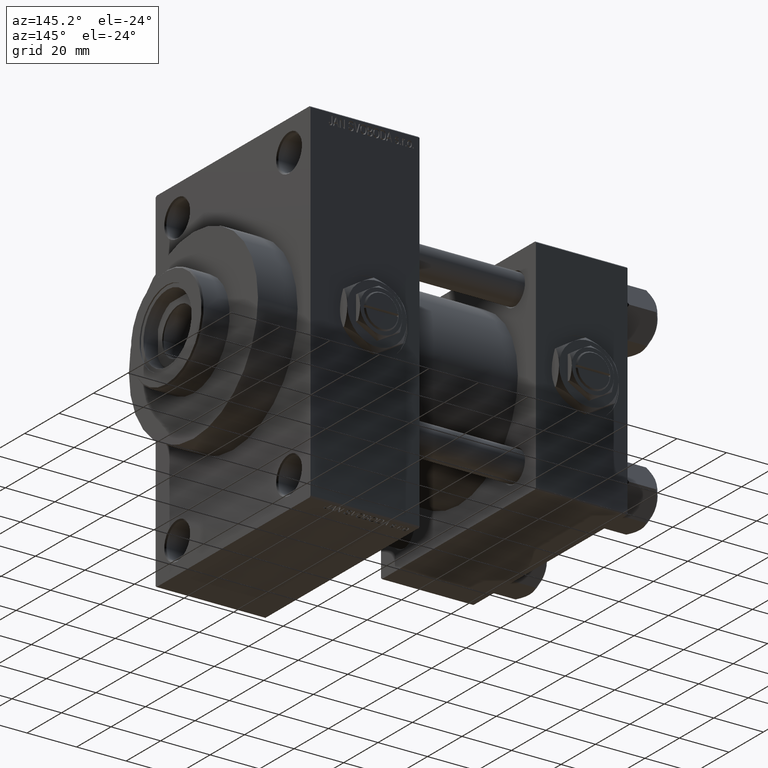
[diagram: clean part render]
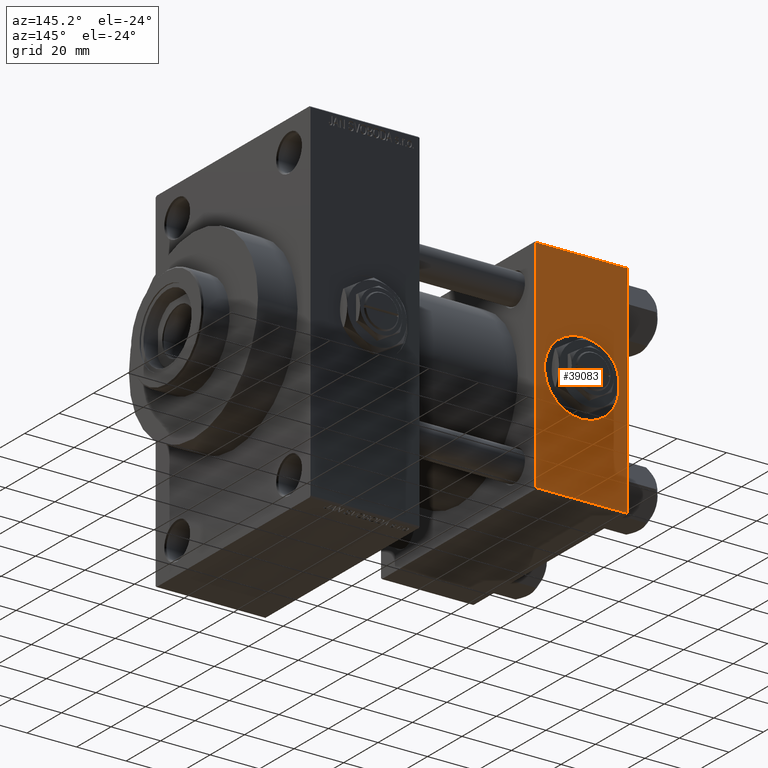
[diagram: same view with one face highlighted and labeled with its STEP entity id]
A machine part, auxiliary view. The second image highlights one B-rep face of the part: STEP entity #39083.
In plain terms, the highlighted planar face has unit normal (0, 1, 0).
Its self-contained STEP definition (entity closure, byte-faithful):
#260 = EDGE_CURVE ( 'NONE', #32337, #31230, #24491, .T. ) ;
#1829 = DIRECTION ( 'NONE',  ( 0.000000000000000000, 0.000000000000000000, 1.000000000000000000 ) ) ;
#3450 = FACE_OUTER_BOUND ( 'NONE', #29539, .T. ) ;
#4588 = CARTESIAN_POINT ( 'NONE',  ( 37.00000000000000000, 44.99999999999998579, 44.50000000000001421 ) ) ;
#4624 = CARTESIAN_POINT ( 'NONE',  ( 37.00000000000000000, 44.99999999999998579, 44.50000000000001421 ) ) ;
#5215 = CARTESIAN_POINT ( 'NONE',  ( 18.50000000000000355, 44.99999999999998579, -15.00000000000000178 ) ) ;
#5299 = DIRECTION ( 'NONE',  ( -1.000000000000000000, 0.000000000000000000, 0.000000000000000000 ) ) ;
#6124 = ORIENTED_EDGE ( 'NONE', *, *, #260, .T. ) ;
#7837 = DIRECTION ( 'NONE',  ( 1.000000000000000000, 0.000000000000000000, 0.000000000000000000 ) ) ;
#8272 = EDGE_LOOP ( 'NONE', ( #17927, #13610 ) ) ;
#9042 = LINE ( 'NONE', #24263, #31983 ) ;
#9661 = AXIS2_PLACEMENT_3D ( 'NONE', #13294, #16806, #1829 ) ;
#10112 = CARTESIAN_POINT ( 'NONE',  ( 0.000000000000000000, 44.99999999999998579, -44.49999999999995737 ) ) ;
#12143 = CARTESIAN_POINT ( 'NONE',  ( 18.50000000000000000, 44.99999999999998579, 15.00000000000000178 ) ) ;
#13294 = CARTESIAN_POINT ( 'NONE',  ( 18.50000000000000000, 44.99999999999998579, 0.000000000000000000 ) ) ;
#13504 = CARTESIAN_POINT ( 'NONE',  ( 37.00000000000000000, 44.99999999999998579, 45.00000000000001421 ) ) ;
#13610 = ORIENTED_EDGE ( 'NONE', *, *, #18961, .F. ) ;
#13942 = VERTEX_POINT ( 'NONE', #5215 ) ;
#16308 = VECTOR ( 'NONE', #40435, 1000.000000000000000 ) ;
#16806 = DIRECTION ( 'NONE',  ( 0.000000000000000000, 1.000000000000000000, 0.000000000000000000 ) ) ;
#17655 = EDGE_CURVE ( 'NONE', #41819, #13942, #30351, .T. ) ;
#17927 = ORIENTED_EDGE ( 'NONE', *, *, #17655, .F. ) ;
#18961 = EDGE_CURVE ( 'NONE', #13942, #41819, #31178, .T. ) ;
#19701 = AXIS2_PLACEMENT_3D ( 'NONE', #21692, #36882, #33153 ) ;
#19832 = ORIENTED_EDGE ( 'NONE', *, *, #23276, .T. ) ;
#21692 = CARTESIAN_POINT ( 'NONE',  ( 37.00000000000000000, 44.99999999999998579, 45.00000000000001421 ) ) ;
#22809 = LINE ( 'NONE', #4588, #26887 ) ;
#23276 = EDGE_CURVE ( 'NONE', #31230, #28319, #9042, .T. ) ;
#24263 = CARTESIAN_POINT ( 'NONE',  ( 37.00000000000000000, 44.99999999999998579, -44.49999999999998579 ) ) ;
#24491 = LINE ( 'NONE', #13504, #16308 ) ;
#26561 = ORIENTED_EDGE ( 'NONE', *, *, #45981, .F. ) ;
#26603 = DIRECTION ( 'NONE',  ( 0.000000000000000000, 0.000000000000000000, 1.000000000000000000 ) ) ;
#26680 = CARTESIAN_POINT ( 'NONE',  ( 37.00000000000000000, 44.99999999999998579, -44.49999999999995737 ) ) ;
#26887 = VECTOR ( 'NONE', #7837, 1000.000000000000000 ) ;
#27154 = AXIS2_PLACEMENT_3D ( 'NONE', #45030, #29614, #26603 ) ;
#28319 = VERTEX_POINT ( 'NONE', #10112 ) ;
#29539 = EDGE_LOOP ( 'NONE', ( #6124, #19832, #26561, #33317 ) ) ;
#29614 = DIRECTION ( 'NONE',  ( 0.000000000000000000, 1.000000000000000000, 0.000000000000000000 ) ) ;
#30351 = CIRCLE ( 'NONE', #27154, 15.00000000000000178 ) ;
#31178 = CIRCLE ( 'NONE', #9661, 15.00000000000000178 ) ;
#31230 = VERTEX_POINT ( 'NONE', #26680 ) ;
#31983 = VECTOR ( 'NONE', #5299, 1000.000000000000000 ) ;
#32337 = VERTEX_POINT ( 'NONE', #4624 ) ;
#32685 = LINE ( 'NONE', #47870, #43652 ) ;
#33153 = DIRECTION ( 'NONE',  ( 0.000000000000000000, -0.000000000000000000, 1.000000000000000000 ) ) ;
#33317 = ORIENTED_EDGE ( 'NONE', *, *, #40119, .T. ) ;
#33876 = PLANE ( 'NONE',  #19701 ) ;
#34936 = CARTESIAN_POINT ( 'NONE',  ( 0.000000000000000000, 44.99999999999998579, 44.50000000000001421 ) ) ;
#36882 = DIRECTION ( 'NONE',  ( -0.000000000000000000, 1.000000000000000000, 0.000000000000000000 ) ) ;
#37605 = FACE_BOUND ( 'NONE', #8272, .T. ) ;
#39083 = ADVANCED_FACE ( 'NONE', ( #37605, #3450 ), #33876, .T. ) ;
#40119 = EDGE_CURVE ( 'NONE', #45885, #32337, #22809, .T. ) ;
#40396 = DIRECTION ( 'NONE',  ( 0.000000000000000000, 0.000000000000000000, -1.000000000000000000 ) ) ;
#40435 = DIRECTION ( 'NONE',  ( 0.000000000000000000, 0.000000000000000000, -1.000000000000000000 ) ) ;
#41819 = VERTEX_POINT ( 'NONE', #12143 ) ;
#43652 = VECTOR ( 'NONE', #40396, 1000.000000000000000 ) ;
#45030 = CARTESIAN_POINT ( 'NONE',  ( 18.50000000000000000, 44.99999999999998579, 0.000000000000000000 ) ) ;
#45885 = VERTEX_POINT ( 'NONE', #34936 ) ;
#45981 = EDGE_CURVE ( 'NONE', #45885, #28319, #32685, .T. ) ;
#47870 = CARTESIAN_POINT ( 'NONE',  ( 0.000000000000000000, 44.99999999999998579, 45.00000000000001421 ) ) ;